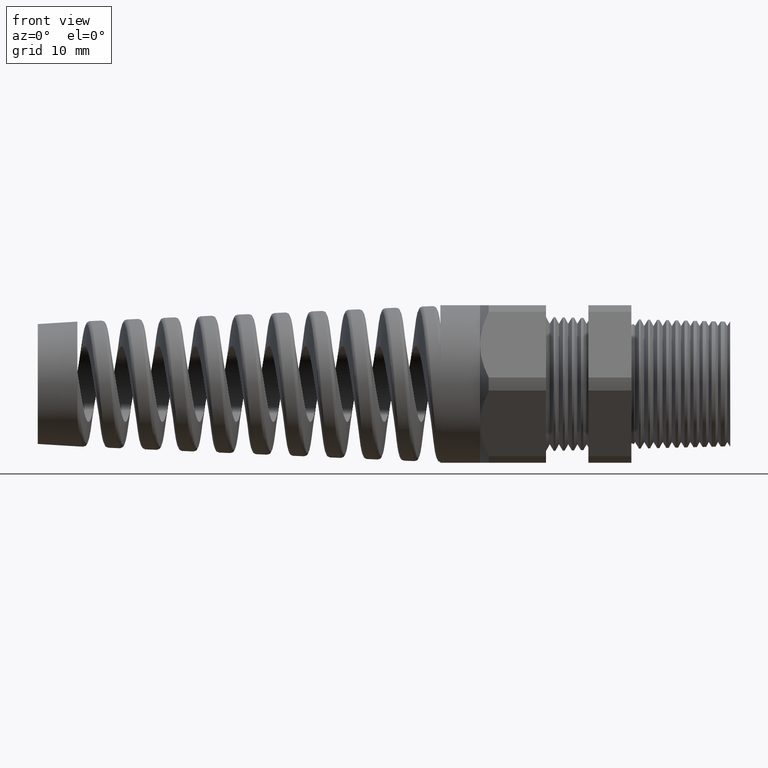
[diagram: clean part render]
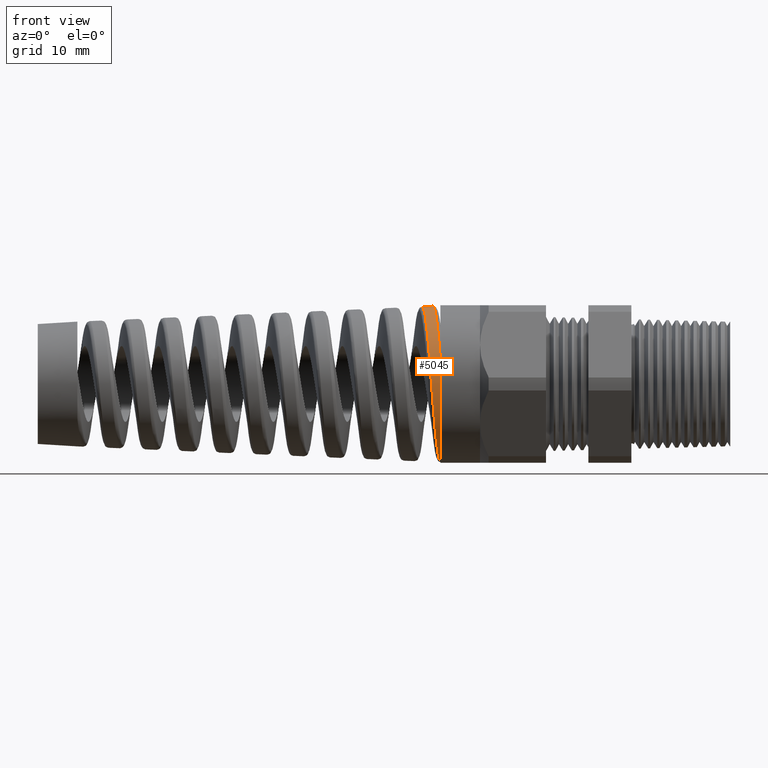
[diagram: same view with one face highlighted and labeled with its STEP entity id]
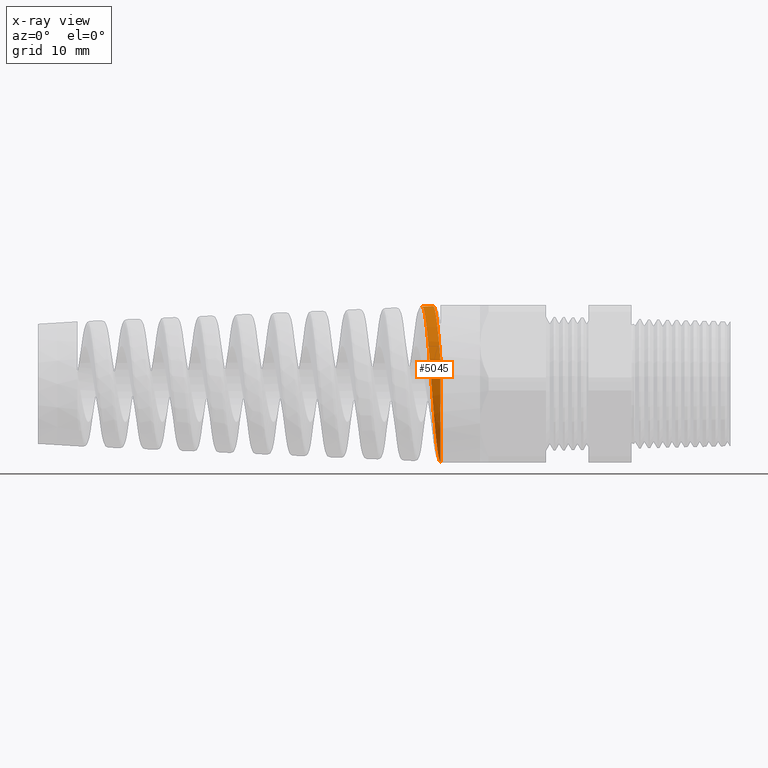
[diagram: x-ray of the same camera — body ghosted, the highlighted face saturated]
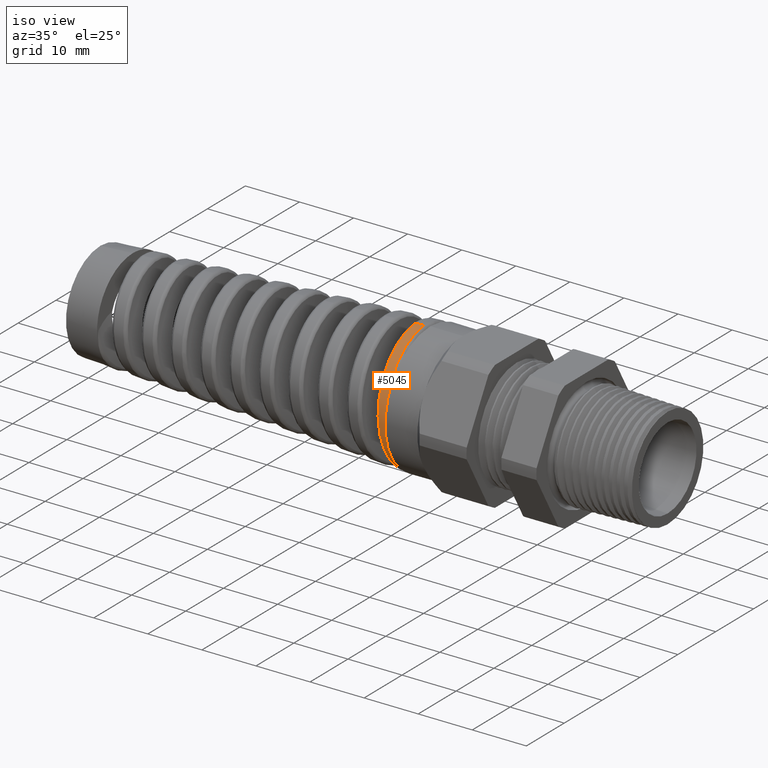
[diagram: same view with one face highlighted and labeled with its STEP entity id]
A machine part, front view. The second image highlights one B-rep face of the part: STEP entity #5045.
The next image is the same camera in x-ray: the body ghosted, the highlighted face saturated — about 0% of this face is hidden behind the body in this view.
A second angle (iso view) of the same face is appended — the face is thin or edge-on in the first view.
In plain terms, the highlighted conical surface has half-angle 2.5 deg.
Its self-contained STEP definition (entity closure, byte-faithful):
#48 = CARTESIAN_POINT ( 'NONE',  ( -1.486857385054701100, -0.4262283634466934600, -0.1879826364811023300 ) ) ;
#49 = CARTESIAN_POINT ( 'NONE',  ( -1.491323915683319300, -0.4464624845691209700, -0.1322802143830988100 ) ) ;
#50 = CARTESIAN_POINT ( 'NONE',  ( -1.493542635330299400, -0.4538722126015070100, -0.1036578096492529700 ) ) ;
#51 = CARTESIAN_POINT ( 'NONE',  ( -1.496914874293445700, -0.4608651220950361600, -0.05955535075180531900 ) ) ;
#52 = CARTESIAN_POINT ( 'NONE',  ( -1.498051187260035300, -0.4625030334846262400, -0.04459264894704963900 ) ) ;
#53 = CARTESIAN_POINT ( 'NONE',  ( -1.500302585131688200, -0.4643115120484135900, -0.01486904964579670700 ) ) ;
#54 = CARTESIAN_POINT ( 'NONE',  ( -1.501422070895448000, -0.4644973036779322900, -5.117323589366322500E-005 ) ) ;
#55 = CARTESIAN_POINT ( 'NONE',  ( -1.504773730627647900, -0.4629443737405185000, 0.04427256871671415800 ) ) ;
#56 = CARTESIAN_POINT ( 'NONE',  ( -1.506998264354658000, -0.4591150363593695700, 0.07364982773638652200 ) ) ;
#57 = CARTESIAN_POINT ( 'NONE',  ( -1.511523985764746900, -0.4456380628443257200, 0.1320389796355554100 ) ) ;
#58 = CARTESIAN_POINT ( 'NONE',  ( -1.513758552695228900, -0.4361834026775522900, 0.1601789124109621900 ) ) ;
#59 = CARTESIAN_POINT ( 'NONE',  ( -1.517116060614015900, -0.4181464969743627400, 0.2006873281177278500 ) ) ;
#60 = CARTESIAN_POINT ( 'NONE',  ( -1.518236736942635900, -0.4114847396622552400, 0.2139150023704126700 ) ) ;
#61 = CARTESIAN_POINT ( 'NONE',  ( -1.520489344265716400, -0.3968373410696658400, 0.2398088338719466000 ) ) ;
#62 = CARTESIAN_POINT ( 'NONE',  ( -1.521626519648454000, -0.3888045756177142000, 0.2525349050118022600 ) ) ;
#63 = CARTESIAN_POINT ( 'NONE',  ( -1.525006843233728300, -0.3631438041140992400, 0.2891343778940991300 ) ) ;
#64 = CARTESIAN_POINT ( 'NONE',  ( -1.527232097559911600, -0.3439133235076171600, 0.3116005685813625400 ) ) ;
#65 = CARTESIAN_POINT ( 'NONE',  ( -1.530596178733562700, -0.3119418502041777500, 0.3424465880613643000 ) ) ;
#66 = CARTESIAN_POINT ( 'NONE',  ( -1.531721774802815400, -0.3007602130834318200, 0.3522498529315303300 ) ) ;
#67 = CARTESIAN_POINT ( 'NONE',  ( -1.533991938960833000, -0.2773137104689398800, 0.3708665659504536400 ) ) ;
#68 = CARTESIAN_POINT ( 'NONE',  ( -1.535124387001929500, -0.2651721639939440500, 0.3795769332728034500 ) ) ;
#69 = CARTESIAN_POINT ( 'NONE',  ( -1.538498779135297500, -0.2278282435345079200, 0.4037480267124389800 ) ) ;
#70 = CARTESIAN_POINT ( 'NONE',  ( -1.540726960191857200, -0.2015906561214295100, 0.4173657428612961300 ) ) ;
#71 = CARTESIAN_POINT ( 'NONE',  ( -1.544105796448176400, -0.1602086047792418100, 0.4340121235474075400 ) ) ;
#72 = CARTESIAN_POINT ( 'NONE',  ( -1.545244445977261400, -0.1459962077566878400, 0.4389460312376843300 ) ) ;
#74 = CARTESIAN_POINT ( 'NONE',  ( -1.547505240249487300, -0.1173889042225873400, 0.4473444875318255400 ) ) ;
#75 = CARTESIAN_POINT ( 'NONE',  ( -1.548629288935663400, -0.1029736645026629300, 0.4508267448976116000 ) ) ;
#286 = DIRECTION ( 'NONE',  ( 0.0000000000000000000, 0.0000000000000000000, -1.000000000000000000 ) ) ;
#287 = DIRECTION ( 'NONE',  ( 1.000000000000000000, 0.0000000000000000000, 0.0000000000000000000 ) ) ;
#288 = AXIS2_PLACEMENT_3D ( 'NONE', #291, #287, #286 ) ;
#289 = CONICAL_SURFACE ( 'NONE', #288, 0.4699999999999999700, 0.04363323129985854900 ) ;
#291 = CARTESIAN_POINT ( 'NONE',  ( -1.369999999999999900, 0.0000000000000000000, 0.0000000000000000000 ) ) ;
#292 = FACE_OUTER_BOUND ( 'NONE', #5046, .T. ) ;
#293 = CARTESIAN_POINT ( 'NONE',  ( -1.448820353894597600, -0.03294053930283547700, -0.4653943222595928700 ) ) ;
#294 = CARTESIAN_POINT ( 'NONE',  ( -1.449942312729341400, -0.04781379184939058000, -0.4642924873763629200 ) ) ;
#295 = CARTESIAN_POINT ( 'NONE',  ( -1.451071385432160600, -0.06273921936926461800, -0.4624607623226229000 ) ) ;
#296 = CARTESIAN_POINT ( 'NONE',  ( -1.453304761618803500, -0.09203715865696240900, -0.4574323632524878700 ) ) ;
#297 = CARTESIAN_POINT ( 'NONE',  ( -1.454415394824753600, -0.1064914730437869600, -0.4542323849016820000 ) ) ;
#298 = CARTESIAN_POINT ( 'NONE',  ( -1.457746581962295200, -0.1492788050571402500, -0.4426092923861754700 ) ) ;
#299 = CARTESIAN_POINT ( 'NONE',  ( -1.459973441634669900, -0.1771240962288948600, -0.4321411143455311000 ) ) ;
#300 = CARTESIAN_POINT ( 'NONE',  ( -1.464482729881802400, -0.2308652351848488900, -0.4057544207311774000 ) ) ;
#301 = CARTESIAN_POINT ( 'NONE',  ( -1.466706059989259600, -0.2560652760547447700, -0.3901972559656782800 ) ) ;
#302 = CARTESIAN_POINT ( 'NONE',  ( -1.470044818669256500, -0.2914453850618313700, -0.3634436803078224800 ) ) ;
#303 = CARTESIAN_POINT ( 'NONE',  ( -1.471158798203866100, -0.3028325872025051700, -0.3539522256414393600 ) ) ;
#304 = CARTESIAN_POINT ( 'NONE',  ( -1.473400772942304000, -0.3247750630937085200, -0.3337960051075936600 ) ) ;
#305 = CARTESIAN_POINT ( 'NONE',  ( -1.474532165550327200, -0.3353551527532492300, -0.3230927761092854400 ) ) ;
#306 = CARTESIAN_POINT ( 'NONE',  ( -1.477893513442683400, -0.3651694286150759000, -0.2898804777673993900 ) ) ;
#307 = CARTESIAN_POINT ( 'NONE',  ( -1.480113534033806300, -0.3827230054156264300, -0.2660930796013278300 ) ) ;
#308 = CARTESIAN_POINT ( 'NONE',  ( -1.484588360360409100, -0.4132321230882131100, -0.2152670492010277900 ) ) ;
#2912 = CARTESIAN_POINT ( 'NONE',  ( -1.492540568299100000, -8.949383534465304000E-013, 0.4646497632435162600 ) ) ;
#2913 = CARTESIAN_POINT ( 'NONE',  ( -1.491631354571441500, -0.01208574365879423700, 0.4646894603721479800 ) ) ;
#2914 = CARTESIAN_POINT ( 'NONE',  ( -1.490719450241302600, -0.02420468226328667500, 0.4642584997486266500 ) ) ;
#2915 = CARTESIAN_POINT ( 'NONE',  ( -1.488884606819244700, -0.04851019523625906700, 0.4624316689592590800 ) ) ;
#2916 = CARTESIAN_POINT ( 'NONE',  ( -1.487962683569545600, -0.06068253679993899200, 0.4610315523309098100 ) ) ;
#2917 = CARTESIAN_POINT ( 'NONE',  ( -1.485221493020129500, -0.09666089207275836700, 0.4554582830892555700 ) ) ;
#2918 = CARTESIAN_POINT ( 'NONE',  ( -1.483411673261028100, -0.1201457585452169200, 0.4499084400937014000 ) ) ;
#2919 = CARTESIAN_POINT ( 'NONE',  ( -1.480692427205277300, -0.1546324225291790500, 0.4388791109349450800 ) ) ;
#2920 = CARTESIAN_POINT ( 'NONE',  ( -1.479784954476931500, -0.1660039612813800100, 0.4347498876170079500 ) ) ;
#2921 = CARTESIAN_POINT ( 'NONE',  ( -1.477961471587955900, -0.1884938672835702000, 0.4255689405057572200 ) ) ;
#2922 = CARTESIAN_POINT ( 'NONE',  ( -1.477041448480207200, -0.1996592150848139300, 0.4204915586296565400 ) ) ;
#2923 = CARTESIAN_POINT ( 'NONE',  ( -1.474298853394994600, -0.2322867246674605000, 0.4040742196544507300 ) ) ;
#2924 = CARTESIAN_POINT ( 'NONE',  ( -1.472488852305128300, -0.2529485599481719500, 0.3915514457336979900 ) ) ;
#2925 = CARTESIAN_POINT ( 'NONE',  ( -1.468862643020376200, -0.2921521393989932600, 0.3634419740746938100 ) ) ;
#2926 = CARTESIAN_POINT ( 'NONE',  ( -1.467044812435806000, -0.3107174271738459800, 0.3478324360653867700 ) ) ;
#2927 = CARTESIAN_POINT ( 'NONE',  ( -1.463377116055265800, -0.3455355252941457200, 0.3135077662555244000 ) ) ;
#2928 = CARTESIAN_POINT ( 'NONE',  ( -1.461569148081989900, -0.3613767456614444000, 0.2952056284257329500 ) ) ;
#2929 = CARTESIAN_POINT ( 'NONE',  ( -1.457953792651654400, -0.3900476828732671900, 0.2564165790905861300 ) ) ;
#2930 = CARTESIAN_POINT ( 'NONE',  ( -1.456146596788985100, -0.4028772406099024900, 0.2359295343258125400 ) ) ;
#2932 = CARTESIAN_POINT ( 'NONE',  ( -1.452488293205610200, -0.4254260139701864800, 0.1927031091458906400 ) ) ;
#2933 = CARTESIAN_POINT ( 'NONE',  ( -1.450653600203654100, -0.4350275627920861500, 0.1701520592509911700 ) ) ;
#2934 = CARTESIAN_POINT ( 'NONE',  ( -1.448820353894546600, -0.4428089962230025700, 0.1469596787728060500 ) ) ;
#2935 = B_SPLINE_CURVE_WITH_KNOTS ( 'NONE', 3,
 ( #2934, #2933, #2932, #2930, #2929, #2928, #2927, #2926, #2925, #2924, #2923, #2922, #2921, #2920, #2919, #2918, #2917, #2916, #2915, #2914, #2913, #2912 ),
 .UNSPECIFIED., .F., .F.,
 ( 4, 2, 2, 2, 2, 2, 2, 2, 2, 2, 4 ),
 ( 0.0000000000000000000, 0.001865077884413884300, 0.003730155768827768600, 0.005595233653241652400, 0.007460311537655537100, 0.009325389422069421000, 0.01025792836427636200, 0.01119046730648330100, 0.01305554519089718300, 0.01398808413310412600, 0.01492062307531106400 ),
 .UNSPECIFIED. ) ;
#4833 = VERTEX_POINT ( 'NONE', #16706 ) ;
#4890 = EDGE_CURVE ( 'NONE', #4833, #4891, #16801, .T. ) ;
#4891 = VERTEX_POINT ( 'NONE', #16796 ) ;
#4980 = EDGE_CURVE ( 'NONE', #4833, #10883, #2935, .T. ) ;
#5026 = EDGE_CURVE ( 'NONE', #10792, #4891, #10922, .T. ) ;
#5045 = ADVANCED_FACE ( 'NONE', ( #292 ), #289, .T. ) ;
#5046 = EDGE_LOOP ( 'NONE', ( #5047, #5111, #5112, #5113 ) ) ;
#5047 = ORIENTED_EDGE ( 'NONE', *, *, #10882, .F. ) ;
#5111 = ORIENTED_EDGE ( 'NONE', *, *, #5026, .T. ) ;
#5112 = ORIENTED_EDGE ( 'NONE', *, *, #4890, .F. ) ;
#5113 = ORIENTED_EDGE ( 'NONE', *, *, #4980, .T. ) ;
#7274 = CARTESIAN_POINT ( 'NONE',  ( -1.551998058396098600, -0.05940219312955224300, 0.4591729555423230700 ) ) ;
#10792 = VERTEX_POINT ( 'NONE', #12771 ) ;
#10882 = EDGE_CURVE ( 'NONE', #10792, #10883, #12949, .T. ) ;
#10883 = VERTEX_POINT ( 'NONE', #12945 ) ;
#10918 = CARTESIAN_POINT ( 'NONE',  ( -1.554239401699939700, -0.02992324423350525800, 0.4619559340008803100 ) ) ;
#10919 = CARTESIAN_POINT ( 'NONE',  ( -1.556510612741669700, 8.032647693756712100E-016, 0.4618567707852543300 ) ) ;
#10922 = B_SPLINE_CURVE_WITH_KNOTS ( 'NONE', 3,
 ( #10919, #10918, #7274, #75, #74, #72, #71, #70, #69, #68, #67, #66, #65, #64, #63, #62, #61, #60, #59, #58, #57, #56, #55, #54, #53, #52, #51, #50, #49, #48, #308, #307, #306, #305, #304, #303, #302, #301, #300, #299, #298, #297, #296, #295, #294, #293 ),
 .UNSPECIFIED., .F., .F.,
 ( 4, 2, 2, 2, 2, 2, 2, 2, 2, 2, 2, 2, 2, 2, 2, 2, 2, 2, 2, 2, 2, 2, 4 ),
 ( 0.6299112831913780100, 0.6322063591892286300, 0.6333538971881539400, 0.6345014351870792400, 0.6367965111849297500, 0.6379440491838550600, 0.6390915871827803600, 0.6413866631806309800, 0.6425342011795562900, 0.6436817391784815900, 0.6459768151763321000, 0.6482718911741827100, 0.6494194291731080200, 0.6505669671720333300, 0.6528620431698839400, 0.6551571191677344500, 0.6574521951655850600, 0.6585997331645103700, 0.6597472711634356800, 0.6620423471612862900, 0.6643374231591368000, 0.6654849611580621000, 0.6666324991569874100 ),
 .UNSPECIFIED. ) ;
#12771 = CARTESIAN_POINT ( 'NONE',  ( -1.556510612741669700, 8.032647693756712100E-016, 0.4618567707852543300 ) ) ;
#12945 = CARTESIAN_POINT ( 'NONE',  ( -1.492540568299100000, -8.949383534465304000E-013, 0.4646497632435162600 ) ) ;
#12946 = DIRECTION ( 'NONE',  ( 0.9990482215818576900, 5.341834311772761800E-018, 0.04361938736533631200 ) ) ;
#12947 = VECTOR ( 'NONE', #12946, 39.37007874015748100 ) ;
#12948 = CARTESIAN_POINT ( 'NONE',  ( -1.369999999999999900, 5.755839955992559700E-017, 0.4699999999999999700 ) ) ;
#12949 = LINE ( 'NONE', #12948, #12947 ) ;
#16706 = CARTESIAN_POINT ( 'NONE',  ( -1.448820353894546600, -0.4428089962230025700, 0.1469596787728060500 ) ) ;
#16796 = CARTESIAN_POINT ( 'NONE',  ( -1.448820353894597600, -0.03294053930283547700, -0.4653943222595928700 ) ) ;
#16797 = DIRECTION ( 'NONE',  ( 0.0000000000000000000, 0.0000000000000000000, 1.000000000000000000 ) ) ;
#16798 = DIRECTION ( 'NONE',  ( 1.000000000000000000, 0.0000000000000000000, 0.0000000000000000000 ) ) ;
#16799 = CARTESIAN_POINT ( 'NONE',  ( -1.448820353894546600, 0.0000000000000000000, 0.0000000000000000000 ) ) ;
#16800 = AXIS2_PLACEMENT_3D ( 'NONE', #16799, #16798, #16797 ) ;
#16801 = CIRCLE ( 'NONE', #16800, 0.4665586290285814200 ) ;